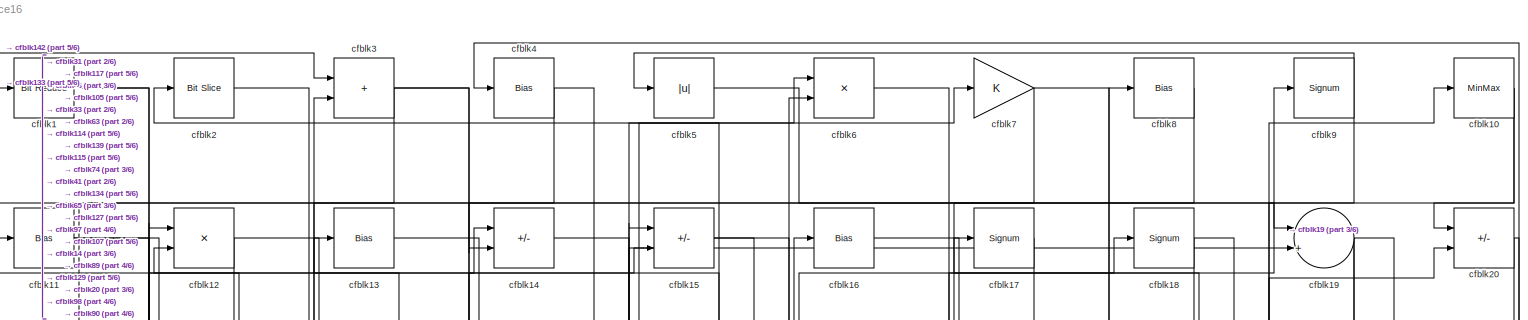
[diagram: root canvas - part 1/6, full width, top band]
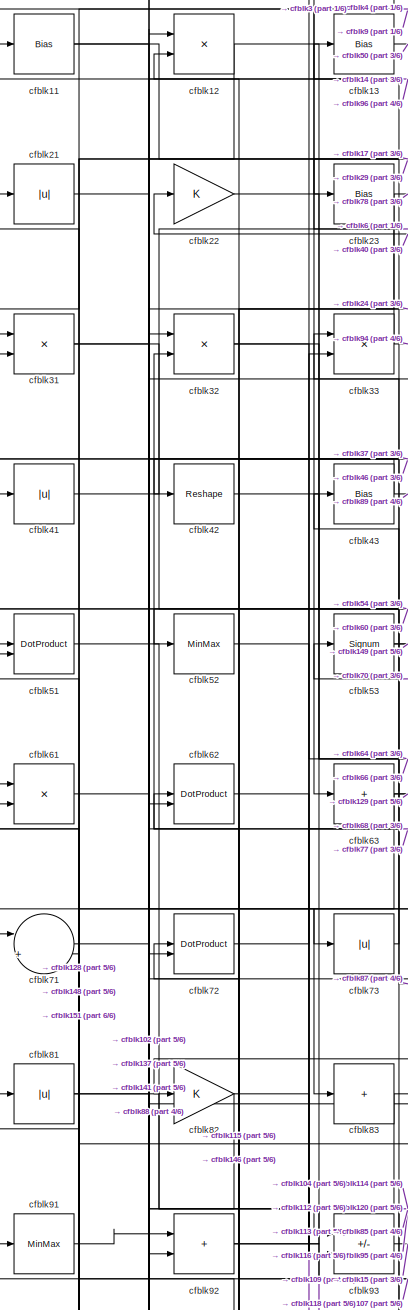
[diagram: root canvas - part 2/6, middle left region]
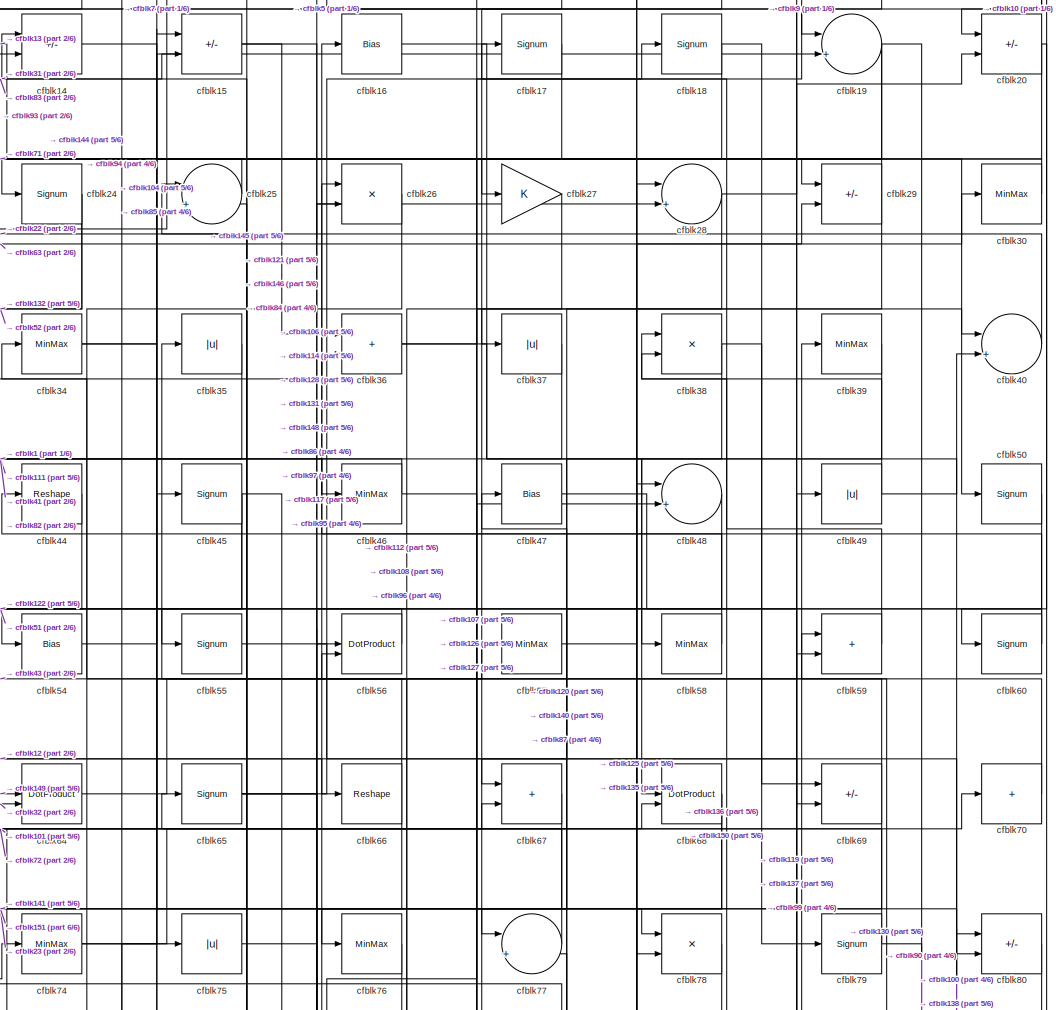
[diagram: root canvas - part 3/6, top center region]
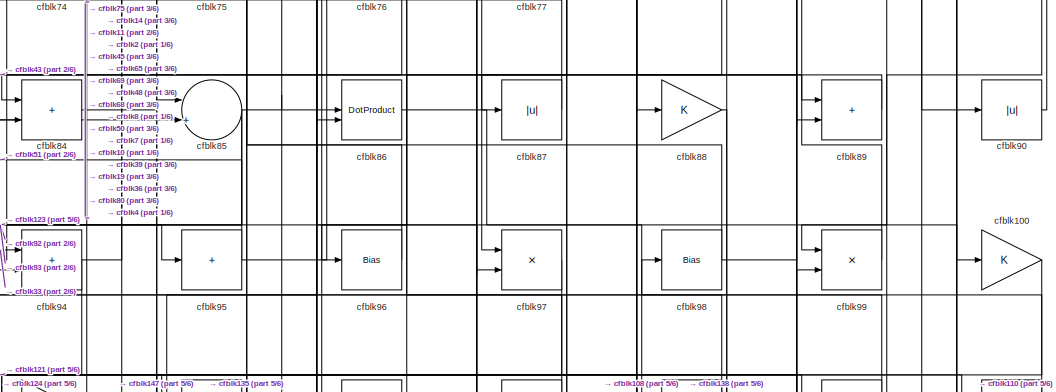
[diagram: root canvas - part 4/6, central region]
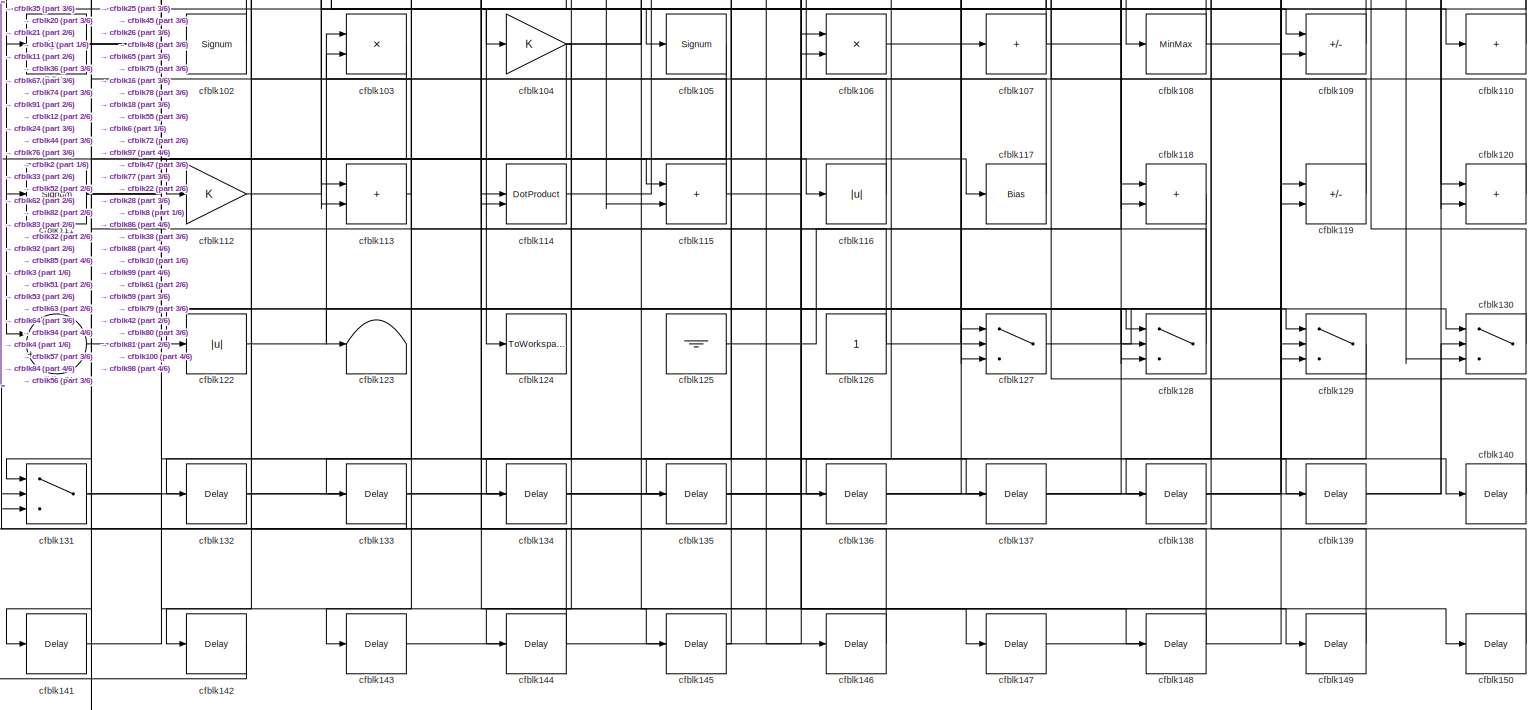
[diagram: root canvas - part 5/6, full width, bottom band]
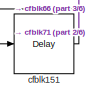
[diagram: root canvas - part 6/6, bottom left region]
MODEL slx_80c212c1ce16
KIND model
CONFIG AbsTol = auto
CONFIG EnableMultiTasking = off
CONFIG FixedStep = auto
CONFIG MaxStep = auto
CONFIG MinStep = auto
CONFIG RelTol = 1e-3
CONFIG SampleTimeConstraint = Unconstrained
CONFIG SolverName = VariableStepAuto
CONFIG StartTime = 0.0
CONFIG StopTime = 10.0
BLOCK [Reference] cfblk1  REF=hdlsllib/Logic and Bit
Operations/Bit Reduce
  SourceBlock = hdlsllib/Logic and Bit\nOperations/Bit Reduce
  SourceType = Bit Reduce
BLOCK [MinMax] cfblk10
BLOCK [Gain] cfblk100
BLOCK [Signum] cfblk101
BLOCK [Signum] cfblk102
BLOCK [Product] cfblk103
  Inputs = */
  RndMeth = Zero
  SaturateOnIntegerOverflow = on
BLOCK [Gain] cfblk104
BLOCK [Signum] cfblk105
BLOCK [Product] cfblk106
  Inputs = */
  RndMeth = Zero
  SaturateOnIntegerOverflow = on
BLOCK [Sum] cfblk107
  IconShape = rectangular
  Inputs = +
BLOCK [MinMax] cfblk108
BLOCK [Sum] cfblk109
  IconShape = rectangular
  Inputs = +-
BLOCK [Bias] cfblk11
  Bias = 0.0
  SaturateOnIntegerOverflow = off
BLOCK [Sum] cfblk110
  IconShape = rectangular
  Inputs = +
BLOCK [Signum] cfblk111
BLOCK [Gain] cfblk112
BLOCK [Sum] cfblk113
  IconShape = rectangular
BLOCK [DotProduct] cfblk114
  OutDataTypeStr = Inherit: Inherit via internal rule
BLOCK [Sum] cfblk115
  IconShape = rectangular
BLOCK [Abs] cfblk116
  SaturateOnIntegerOverflow = off
BLOCK [Bias] cfblk117
  Bias = 0.0
  SaturateOnIntegerOverflow = off
BLOCK [Sum] cfblk118
  IconShape = rectangular
BLOCK [Sum] cfblk119
  IconShape = rectangular
  Inputs = +-
BLOCK [Product] cfblk12
  Inputs = */
  RndMeth = Zero
  SaturateOnIntegerOverflow = on
BLOCK [Sum] cfblk120
  IconShape = rectangular
BLOCK [Sum] cfblk121
  Inputs = |++
BLOCK [Abs] cfblk122
  SaturateOnIntegerOverflow = off
BLOCK [Terminator] cfblk123
BLOCK [ToWorkspace] cfblk124
  MaxDataPoints = inf
  SampleTime = -1
  SaveFormat = Timeseries
  VariableName = simout
BLOCK [Ground] cfblk125
BLOCK [Constant] cfblk126
  SampleTime = -1
BLOCK [Switch] cfblk127
  InputSameDT = off
  SaturateOnIntegerOverflow = off
BLOCK [Switch] cfblk128
  InputSameDT = off
  SaturateOnIntegerOverflow = off
BLOCK [Switch] cfblk129
  InputSameDT = off
  SaturateOnIntegerOverflow = off
BLOCK [Bias] cfblk13
  Bias = 0.0
  SaturateOnIntegerOverflow = off
BLOCK [Switch] cfblk130
  InputSameDT = off
  SaturateOnIntegerOverflow = off
BLOCK [Switch] cfblk131
  InputSameDT = off
  SaturateOnIntegerOverflow = off
BLOCK [Delay] cfblk132
  InputPortMap = u0
  SampleTime = 1
BLOCK [Delay] cfblk133
  InputPortMap = u0
  SampleTime = 1
BLOCK [Delay] cfblk134
  InputPortMap = u0
  SampleTime = 1
BLOCK [Delay] cfblk135
  InputPortMap = u0
  SampleTime = 1
BLOCK [Delay] cfblk136
  InputPortMap = u0
  SampleTime = 1
BLOCK [Delay] cfblk137
  InputPortMap = u0
  SampleTime = 1
BLOCK [Delay] cfblk138
  InputPortMap = u0
  SampleTime = 1
BLOCK [Delay] cfblk139
  InputPortMap = u0
  SampleTime = 1
BLOCK [Sum] cfblk14
  IconShape = rectangular
  Inputs = +-
BLOCK [Delay] cfblk140
  InputPortMap = u0
  SampleTime = 1
BLOCK [Delay] cfblk141
  InputPortMap = u0
  SampleTime = 1
BLOCK [Delay] cfblk142
  InputPortMap = u0
  SampleTime = 1
BLOCK [Delay] cfblk143
  InputPortMap = u0
  SampleTime = 1
BLOCK [Delay] cfblk144
  InputPortMap = u0
  SampleTime = 1
BLOCK [Delay] cfblk145
  InputPortMap = u0
  SampleTime = 1
BLOCK [Delay] cfblk146
  InputPortMap = u0
  SampleTime = 1
BLOCK [Delay] cfblk147
  InputPortMap = u0
  SampleTime = 1
BLOCK [Delay] cfblk148
  InputPortMap = u0
  SampleTime = 1
BLOCK [Delay] cfblk149
  InputPortMap = u0
  SampleTime = 1
BLOCK [Sum] cfblk15
  IconShape = rectangular
  Inputs = +-
BLOCK [Delay] cfblk150
  InputPortMap = u0
  SampleTime = 1
BLOCK [Delay] cfblk151
  InputPortMap = u0
  SampleTime = 1
BLOCK [Bias] cfblk16
  Bias = 0.0
  SaturateOnIntegerOverflow = off
BLOCK [Signum] cfblk17
BLOCK [Signum] cfblk18
BLOCK [Sum] cfblk19
  Inputs = |++
BLOCK [Reference] cfblk2  REF=hdlsllib/Logic and Bit
Operations/Bit Slice
  SourceBlock = hdlsllib/Logic and Bit\nOperations/Bit Slice
  SourceType = Bit Slice
BLOCK [Sum] cfblk20
  IconShape = rectangular
  Inputs = +-
BLOCK [Abs] cfblk21
  SaturateOnIntegerOverflow = off
BLOCK [Gain] cfblk22
BLOCK [Bias] cfblk23
  Bias = 0.0
  SaturateOnIntegerOverflow = off
BLOCK [Signum] cfblk24
BLOCK [Sum] cfblk25
  Inputs = |++
BLOCK [Product] cfblk26
  Inputs = */
  RndMeth = Zero
  SaturateOnIntegerOverflow = on
BLOCK [Gain] cfblk27
BLOCK [Sum] cfblk28
  Inputs = |++
BLOCK [Sum] cfblk29
  IconShape = rectangular
  Inputs = +-
BLOCK [Sum] cfblk3
  IconShape = rectangular
BLOCK [MinMax] cfblk30
BLOCK [Product] cfblk31
  Inputs = */
  RndMeth = Zero
  SaturateOnIntegerOverflow = on
BLOCK [Product] cfblk32
  Inputs = */
  RndMeth = Zero
  SaturateOnIntegerOverflow = on
BLOCK [Product] cfblk33
  Inputs = */
  RndMeth = Zero
  SaturateOnIntegerOverflow = on
BLOCK [MinMax] cfblk34
BLOCK [Abs] cfblk35
  SaturateOnIntegerOverflow = off
BLOCK [Sum] cfblk36
  IconShape = rectangular
BLOCK [Abs] cfblk37
  SaturateOnIntegerOverflow = off
BLOCK [Product] cfblk38
  Inputs = */
  RndMeth = Zero
  SaturateOnIntegerOverflow = on
BLOCK [MinMax] cfblk39
BLOCK [Bias] cfblk4
  Bias = 0.0
  SaturateOnIntegerOverflow = off
BLOCK [Sum] cfblk40
  Inputs = |++
BLOCK [Abs] cfblk41
  SaturateOnIntegerOverflow = off
BLOCK [Reshape] cfblk42
BLOCK [Bias] cfblk43
  Bias = 0.0
  SaturateOnIntegerOverflow = off
BLOCK [Reshape] cfblk44
BLOCK [Signum] cfblk45
BLOCK [MinMax] cfblk46
BLOCK [Bias] cfblk47
  Bias = 0.0
  SaturateOnIntegerOverflow = off
BLOCK [Sum] cfblk48
  Inputs = |++
BLOCK [Abs] cfblk49
  SaturateOnIntegerOverflow = off
BLOCK [Abs] cfblk5
  SaturateOnIntegerOverflow = off
BLOCK [Signum] cfblk50
BLOCK [DotProduct] cfblk51
  OutDataTypeStr = Inherit: Inherit via internal rule
BLOCK [MinMax] cfblk52
BLOCK [Signum] cfblk53
BLOCK [Bias] cfblk54
  Bias = 0.0
  SaturateOnIntegerOverflow = off
BLOCK [Signum] cfblk55
BLOCK [DotProduct] cfblk56
  OutDataTypeStr = Inherit: Inherit via internal rule
BLOCK [MinMax] cfblk57
BLOCK [MinMax] cfblk58
BLOCK [Sum] cfblk59
  IconShape = rectangular
BLOCK [Product] cfblk6
  Inputs = */
  RndMeth = Zero
  SaturateOnIntegerOverflow = on
BLOCK [Signum] cfblk60
BLOCK [Product] cfblk61
  Inputs = */
  RndMeth = Zero
  SaturateOnIntegerOverflow = on
BLOCK [DotProduct] cfblk62
  OutDataTypeStr = Inherit: Inherit via internal rule
BLOCK [Sum] cfblk63
  IconShape = rectangular
  Inputs = +
BLOCK [DotProduct] cfblk64
  OutDataTypeStr = Inherit: Inherit via internal rule
BLOCK [Signum] cfblk65
BLOCK [Reshape] cfblk66
BLOCK [Sum] cfblk67
  IconShape = rectangular
BLOCK [DotProduct] cfblk68
  OutDataTypeStr = Inherit: Inherit via internal rule
BLOCK [Sum] cfblk69
  IconShape = rectangular
  Inputs = +-
BLOCK [Gain] cfblk7
BLOCK [Sum] cfblk70
  IconShape = rectangular
  Inputs = +
BLOCK [Sum] cfblk71
  Inputs = |++
BLOCK [DotProduct] cfblk72
  OutDataTypeStr = Inherit: Inherit via internal rule
BLOCK [Abs] cfblk73
  SaturateOnIntegerOverflow = off
BLOCK [MinMax] cfblk74
BLOCK [Abs] cfblk75
  SaturateOnIntegerOverflow = off
BLOCK [MinMax] cfblk76
BLOCK [Sum] cfblk77
  Inputs = |++
BLOCK [Product] cfblk78
  Inputs = */
  RndMeth = Zero
  SaturateOnIntegerOverflow = on
BLOCK [Signum] cfblk79
BLOCK [Bias] cfblk8
  Bias = 0.0
  SaturateOnIntegerOverflow = off
BLOCK [Sum] cfblk80
  IconShape = rectangular
  Inputs = +-
BLOCK [Abs] cfblk81
  SaturateOnIntegerOverflow = off
BLOCK [Gain] cfblk82
BLOCK [Sum] cfblk83
  IconShape = rectangular
  Inputs = +
BLOCK [Sum] cfblk84
  IconShape = rectangular
BLOCK [Sum] cfblk85
  Inputs = |++
BLOCK [DotProduct] cfblk86
  OutDataTypeStr = Inherit: Inherit via internal rule
BLOCK [Abs] cfblk87
  SaturateOnIntegerOverflow = off
BLOCK [Gain] cfblk88
BLOCK [Sum] cfblk89
  IconShape = rectangular
BLOCK [Signum] cfblk9
BLOCK [Abs] cfblk90
  SaturateOnIntegerOverflow = off
BLOCK [MinMax] cfblk91
BLOCK [Sum] cfblk92
  IconShape = rectangular
BLOCK [Sum] cfblk93
  IconShape = rectangular
  Inputs = +-
BLOCK [Sum] cfblk94
  IconShape = rectangular
BLOCK [Sum] cfblk95
  IconShape = rectangular
  Inputs = +
BLOCK [Bias] cfblk96
  Bias = 0.0
  SaturateOnIntegerOverflow = off
BLOCK [Product] cfblk97
  Inputs = */
  RndMeth = Zero
  SaturateOnIntegerOverflow = on
BLOCK [Bias] cfblk98
  Bias = 0.0
  SaturateOnIntegerOverflow = off
BLOCK [Product] cfblk99
  Inputs = */
  RndMeth = Zero
  SaturateOnIntegerOverflow = on
LINE cfblk100:1 -> cfblk124:1
NET cfblk101:1 -> cfblk129:1, cfblk36:2, cfblk67:2
LINE cfblk102:1 -> cfblk91:1
LINE cfblk103:1 -> cfblk131:3
NET cfblk104:1 -> cfblk110:1, cfblk133:1, cfblk134:1, cfblk57:1
LINE cfblk105:1 -> cfblk131:1
LINE cfblk106:1 -> cfblk128:2
NET cfblk107:1 -> cfblk72:1, cfblk8:1
NET cfblk108:1 -> cfblk140:1, cfblk56:2
LINE cfblk109:1 -> cfblk61:1
NET cfblk10:1 -> cfblk129:2, cfblk20:1
LINE cfblk110:1 -> cfblk98:1
NET cfblk111:1 -> cfblk115:1, cfblk128:1, cfblk74:1
LINE cfblk112:1 -> cfblk33:2
LINE cfblk113:1 -> cfblk53:1
LINE cfblk114:1 -> cfblk56:1
NET cfblk115:1 -> cfblk150:1, cfblk62:1
LINE cfblk116:1 -> cfblk21:1
LINE cfblk117:1 -> cfblk16:1
LINE cfblk118:1 -> cfblk143:1
LINE cfblk119:1 -> cfblk25:1
NET cfblk11:1 -> cfblk137:1, cfblk88:1
LINE cfblk120:1 -> cfblk47:1
LINE cfblk121:1 -> cfblk85:2
LINE cfblk122:1 -> cfblk103:1
LINE cfblk125:1 -> cfblk28:1
NET cfblk126:1 -> cfblk103:2, cfblk18:1
LINE cfblk127:1 -> cfblk130:1
LINE cfblk128:1 -> cfblk81:1
LINE cfblk129:1 -> cfblk142:1
NET cfblk12:1 -> cfblk62:2, cfblk66:1
LINE cfblk130:1 -> cfblk59:1
NET cfblk131:1 -> cfblk145:1, cfblk26:2
LINE cfblk132:1 -> cfblk127:1
LINE cfblk133:1 -> cfblk1:1
LINE cfblk134:1 -> cfblk6:2
LINE cfblk135:1 -> cfblk48:1
LINE cfblk136:1 -> cfblk119:1
LINE cfblk137:1 -> cfblk59:2
LINE cfblk138:1 -> cfblk80:1
LINE cfblk139:1 -> cfblk130:2
LINE cfblk13:1 -> cfblk50:1
LINE cfblk140:1 -> cfblk77:2
LINE cfblk141:1 -> cfblk32:1
LINE cfblk142:1 -> cfblk3:1
LINE cfblk143:1 -> cfblk106:1
LINE cfblk144:1 -> cfblk131:2
LINE cfblk145:1 -> cfblk25:2
LINE cfblk146:1 -> cfblk12:2
LINE cfblk147:1 -> cfblk99:2
LINE cfblk148:1 -> cfblk61:2
LINE cfblk149:1 -> cfblk64:1
LINE cfblk14:1 -> cfblk85:1
LINE cfblk150:1 -> cfblk38:2
LINE cfblk151:1 -> cfblk71:2
NET cfblk15:1 -> cfblk28:2, cfblk36:1
LINE cfblk16:1 -> cfblk68:1
LINE cfblk17:1 -> cfblk71:1
NET cfblk18:1 -> cfblk127:3, cfblk79:1
NET cfblk19:1 -> cfblk29:1, cfblk90:1, cfblk94:2
NET cfblk1:1 -> cfblk117:1, cfblk46:1
NET cfblk20:1 -> cfblk101:1, cfblk60:1
LINE cfblk21:1 -> cfblk73:1
LINE cfblk22:1 -> cfblk118:1
NET cfblk23:1 -> cfblk72:2, cfblk78:1
NET cfblk24:1 -> cfblk132:1, cfblk52:1
LINE cfblk25:1 -> cfblk24:1
LINE cfblk26:1 -> cfblk144:1
LINE cfblk27:1 -> cfblk76:1
NET cfblk28:1 -> cfblk20:2, cfblk67:1
NET cfblk29:1 -> cfblk23:1, cfblk37:1
LINE cfblk2:1 -> cfblk105:1
LINE cfblk30:1 -> cfblk27:1
NET cfblk31:1 -> cfblk14:1, cfblk54:1
NET cfblk32:1 -> cfblk109:1, cfblk64:2
NET cfblk33:1 -> cfblk3:2, cfblk94:1
NET cfblk34:1 -> cfblk19:2, cfblk80:2
LINE cfblk35:1 -> cfblk111:1
NET cfblk36:1 -> cfblk100:1, cfblk40:1
LINE cfblk37:1 -> cfblk82:1
NET cfblk38:1 -> cfblk58:1, cfblk69:1
LINE cfblk39:1 -> cfblk77:1
NET cfblk3:1 -> cfblk114:1, cfblk139:1, cfblk31:2
LINE cfblk40:1 -> cfblk22:1
LINE cfblk41:1 -> cfblk6:1
LINE cfblk42:1 -> cfblk120:2
NET cfblk43:1 -> cfblk42:1, cfblk89:2
LINE cfblk44:1 -> cfblk122:1
NET cfblk45:1 -> cfblk121:1, cfblk146:1, cfblk84:2
NET cfblk46:1 -> cfblk41:1, cfblk69:2
LINE cfblk47:1 -> cfblk119:2
LINE cfblk48:1 -> cfblk106:2
NET cfblk49:1 -> cfblk38:1, cfblk40:2
NET cfblk4:1 -> cfblk115:2, cfblk63:1
LINE cfblk50:1 -> cfblk87:1
LINE cfblk51:1 -> cfblk114:2
LINE cfblk52:1 -> cfblk104:1
NET cfblk53:1 -> cfblk109:2, cfblk149:1
LINE cfblk54:1 -> cfblk45:1
LINE cfblk55:1 -> cfblk107:1
LINE cfblk56:1 -> cfblk55:1
LINE cfblk57:1 -> cfblk30:1
LINE cfblk58:1 -> cfblk26:1
LINE cfblk59:1 -> cfblk17:1
LINE cfblk5:1 -> cfblk19:1
NET cfblk60:1 -> cfblk44:1, cfblk51:1
LINE cfblk61:1 -> cfblk102:1
LINE cfblk62:1 -> cfblk113:1
NET cfblk63:1 -> cfblk129:3, cfblk29:2, cfblk83:1
LINE cfblk64:1 -> cfblk49:1
NET cfblk65:1 -> cfblk128:3, cfblk97:2, cfblk9:1
NET cfblk66:1 -> cfblk151:1, cfblk34:1
LINE cfblk67:1 -> cfblk141:1
NET cfblk68:1 -> cfblk78:2, cfblk96:1
NET cfblk69:1 -> cfblk35:1, cfblk86:2
LINE cfblk6:1 -> cfblk127:2
LINE cfblk70:1 -> cfblk43:1
LINE cfblk71:1 -> cfblk12:1
LINE cfblk72:1 -> cfblk68:2
LINE cfblk73:1 -> cfblk13:1
NET cfblk74:1 -> cfblk70:1, cfblk7:1
LINE cfblk75:1 -> cfblk148:1
LINE cfblk76:1 -> cfblk112:1
LINE cfblk77:1 -> cfblk32:2
LINE cfblk78:1 -> cfblk136:1
NET cfblk79:1 -> cfblk130:3, cfblk65:1
NET cfblk7:1 -> cfblk14:2, cfblk89:1
LINE cfblk80:1 -> cfblk99:1
NET cfblk81:1 -> cfblk120:1, cfblk93:1
NET cfblk82:1 -> cfblk116:1, cfblk92:2
NET cfblk83:1 -> cfblk113:2, cfblk15:2
LINE cfblk84:1 -> cfblk147:1
NET cfblk85:1 -> cfblk123:1, cfblk86:1, cfblk93:2
LINE cfblk86:1 -> cfblk108:1
LINE cfblk87:1 -> cfblk33:1
LINE cfblk88:1 -> cfblk138:1
LINE cfblk89:1 -> cfblk84:1
LINE cfblk8:1 -> cfblk97:1
LINE cfblk90:1 -> cfblk4:1
LINE cfblk91:1 -> cfblk92:1
NET cfblk92:1 -> cfblk118:2, cfblk95:1
LINE cfblk93:1 -> cfblk15:1
NET cfblk94:1 -> cfblk121:2, cfblk75:1
NET cfblk95:1 -> cfblk48:2, cfblk51:2
LINE cfblk96:1 -> cfblk11:1
LINE cfblk97:1 -> cfblk135:1
NET cfblk98:1 -> cfblk10:1, cfblk2:1
LINE cfblk99:1 -> cfblk39:1
NET cfblk9:1 -> cfblk31:1, cfblk5:1
note: NET lines group one-source signal fan-out (src -> all destinations, sorted); 1:1 wires keep LINE
